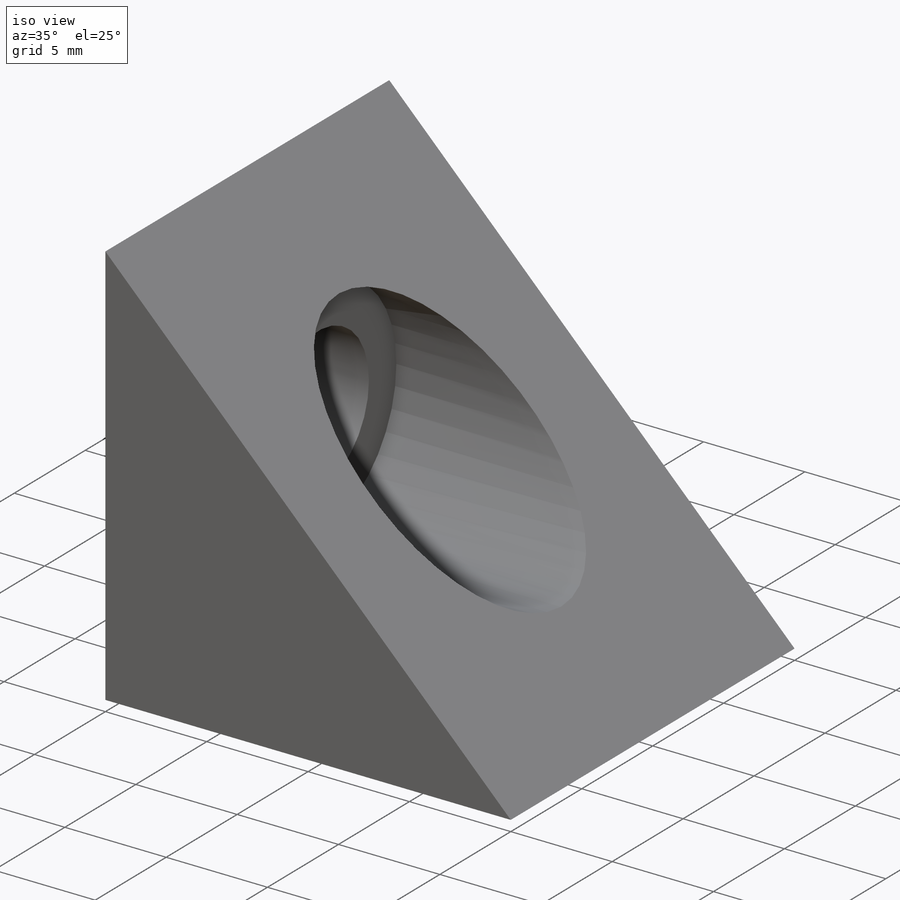
[diagram: iso view]
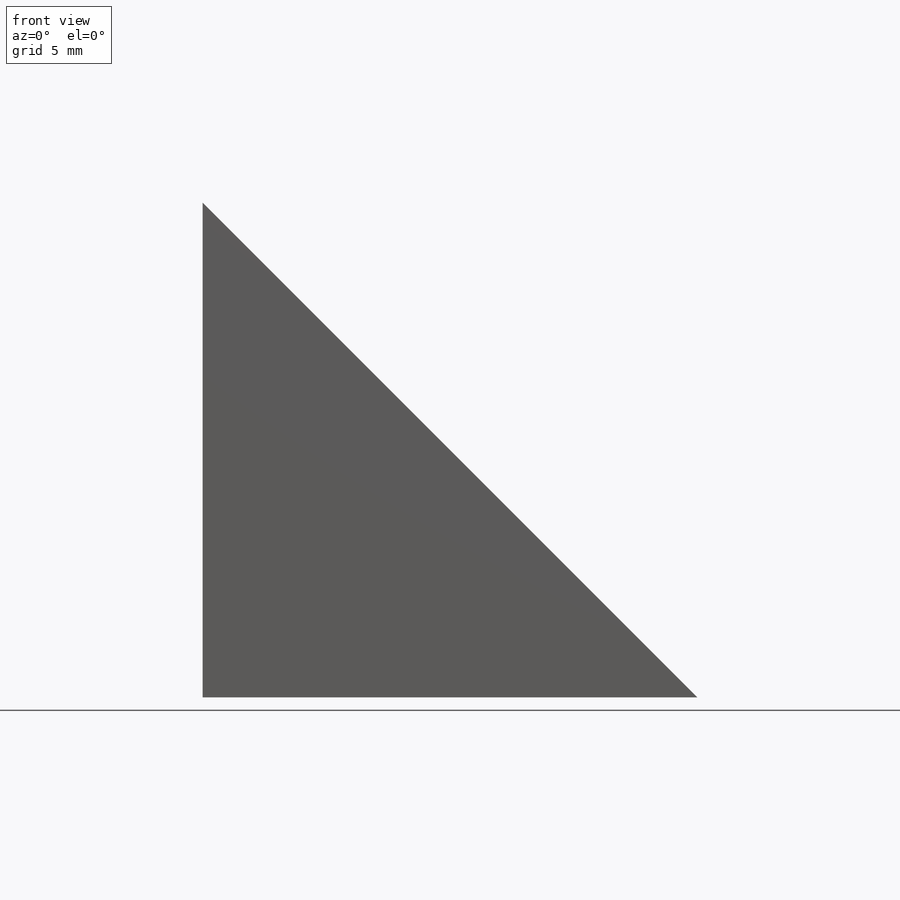
[diagram: front view]
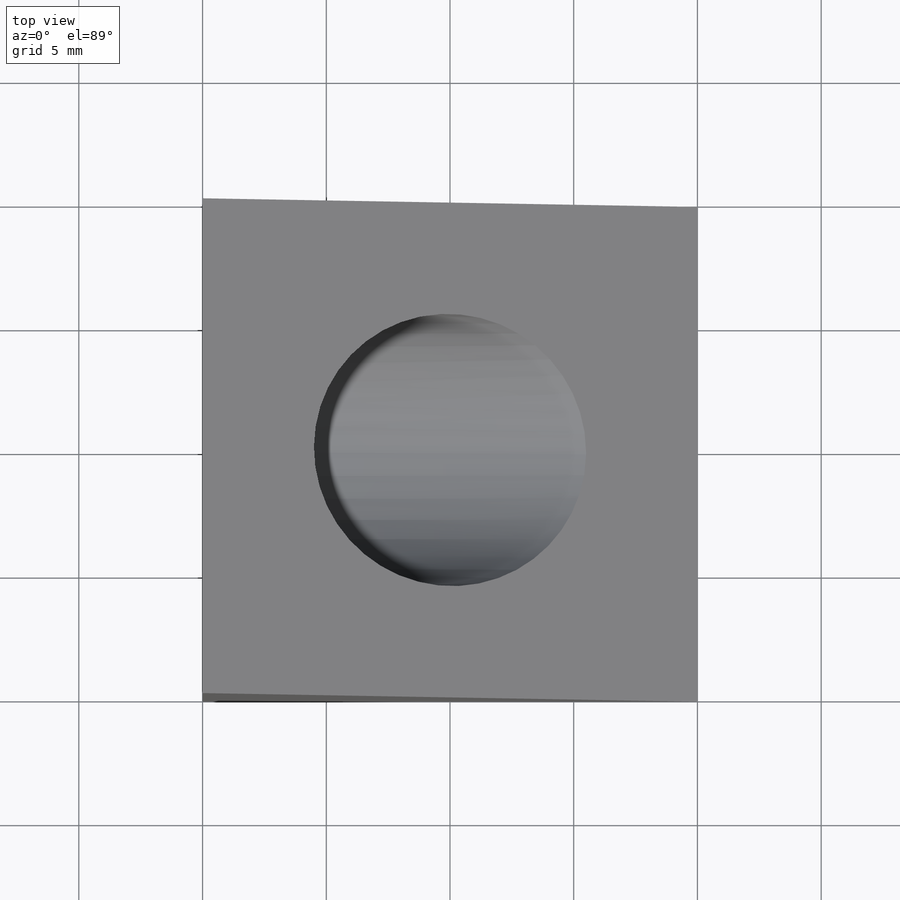
[diagram: top view]
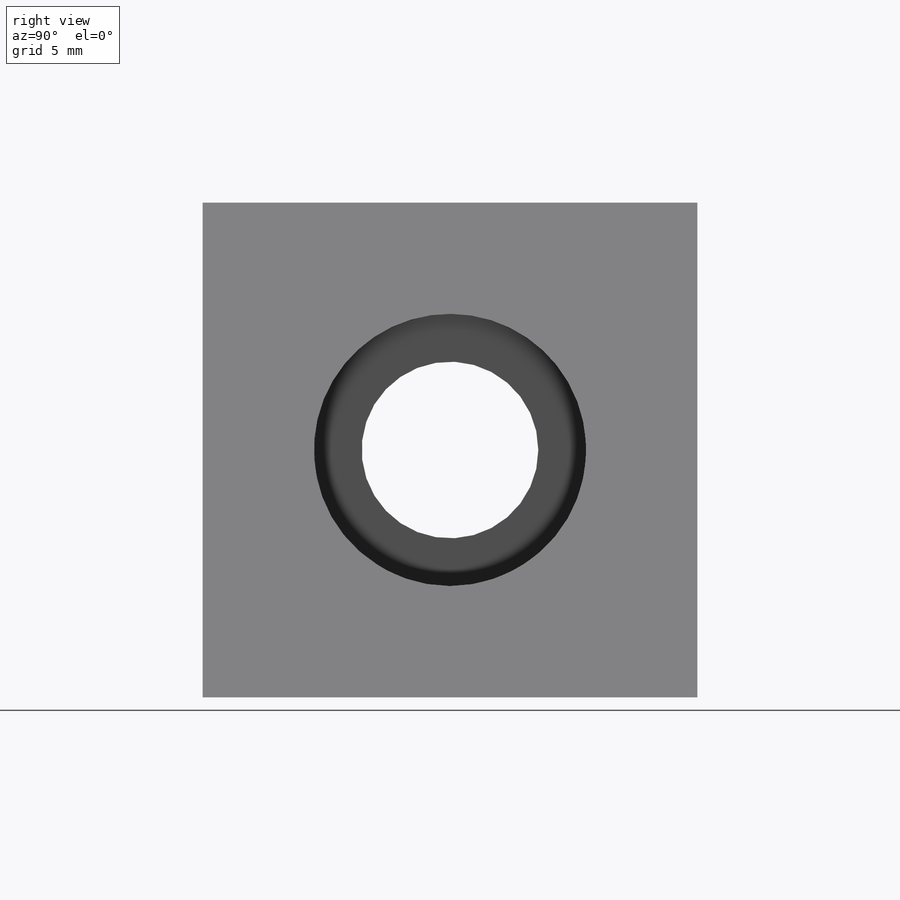
[diagram: right view]
SOLIDWORKS PART (.sldprt)
format: sldprt  version: not decoded by parser v0  size: 146,432 bytes
history: native  units: mm
features: sketch x3, cut_extrude x2, material x1, extrude x1, plane x1 (+13 scaffold rows collapsed)
feature tree (21):
  scaffold x13  (default folders/planes/origin — collapsed)
  material  "Material <not specified>"
  sketch  "Sketch1"  dims[D1=20.0mm D2=20.0mm]
  extrude  "Boss-Extrude1"  Depth=20mm
  plane  "Plane1"
  sketch  "Sketch2"  dims[D3=7.14mm D1=20.0mm D2=20.0mm D4=10.0mm]
  cut_extrude  "Cut-Extrude1"  [1 undecoded]
  sketch  "Sketch3"  dims[D1=11.0mm]
  cut_extrude  "Cut-Extrude2"  Depth=3.5mm
decode coverage: 5 of 6 modeling features carry decoded parameters
note: 1 parameter value undecoded
note: suppression state not decoded; provenance and decode notes live in map.json
